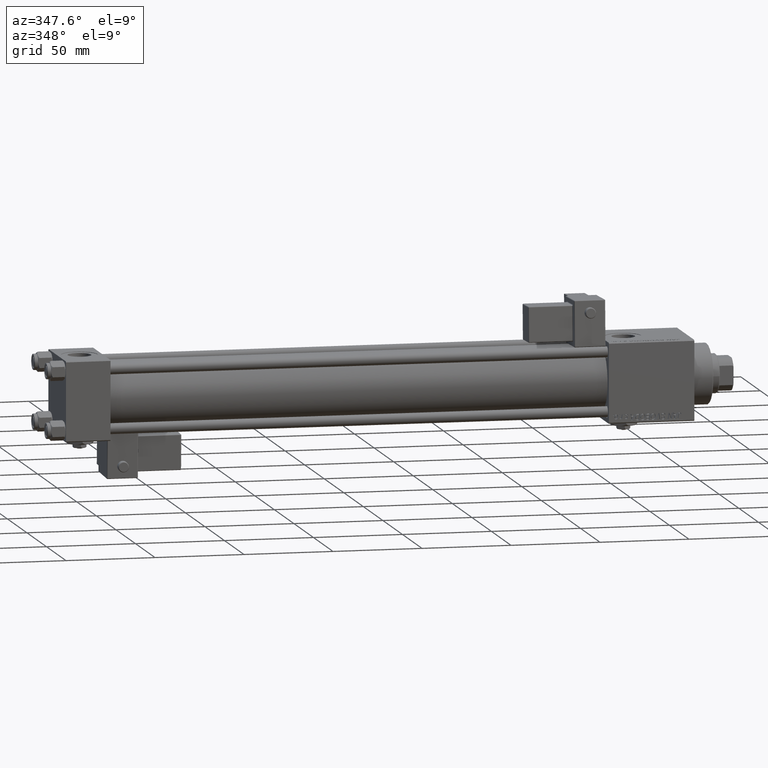
[diagram: clean part render]
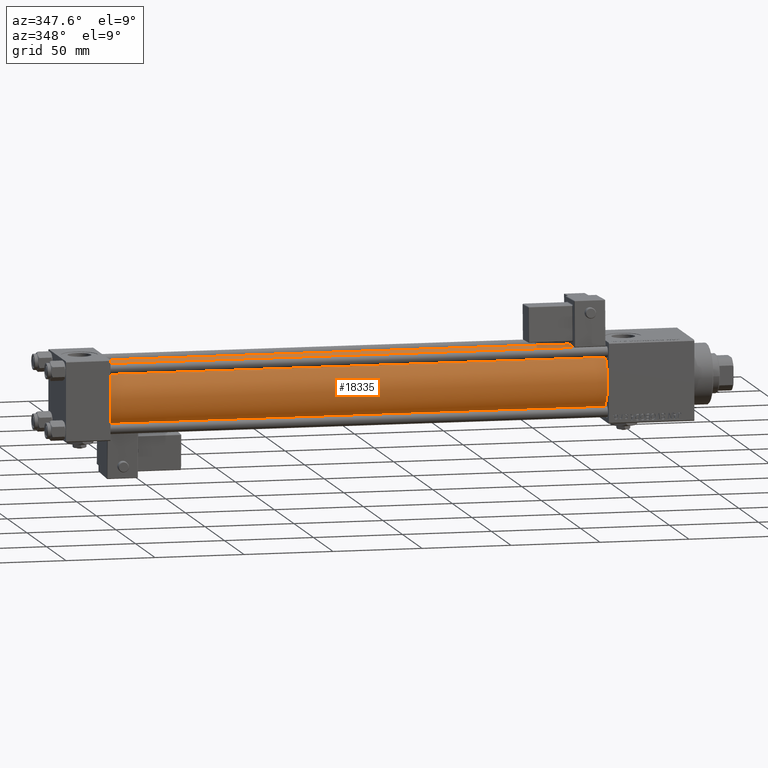
[diagram: same view with one face highlighted and labeled with its STEP entity id]
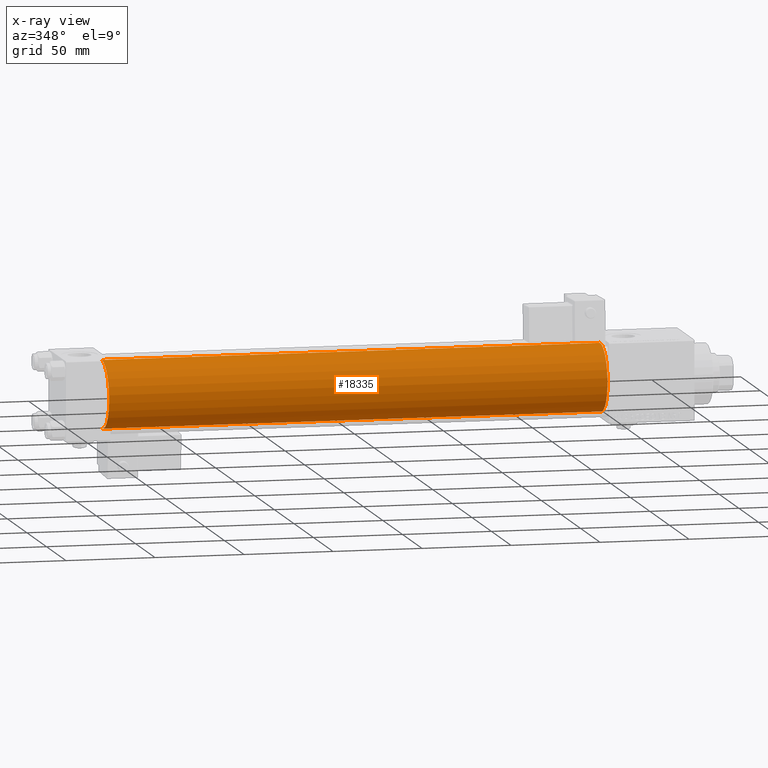
[diagram: x-ray of the same camera — body ghosted, the highlighted face saturated]
A machine part, auxiliary view. The second image highlights one B-rep face of the part: STEP entity #18335.
The next image is the same camera in x-ray: the body ghosted, the highlighted face saturated — about 0% of this face is hidden behind the body in this view.
In plain terms, the highlighted cylindrical surface (edge-blend (fillet) strip) has radius 19 mm, axis along (-1, -0, -0).
Its self-contained STEP definition (entity closure, byte-faithful):
#523 = CARTESIAN_POINT ( 'NONE',  ( 305.0000000000000568, -2.602085213965210642E-15, 19.00000000000000000 ) ) ;
#1055 = VECTOR ( 'NONE', #15272, 1000.000000000000000 ) ;
#4654 = EDGE_CURVE ( 'NONE', #42153, #38949, #31903, .T. ) ;
#5104 = CARTESIAN_POINT ( 'NONE',  ( 25.00000000000002132, -2.602085213965210642E-15, 0.000000000000000000 ) ) ;
#6267 = DIRECTION ( 'NONE',  ( 0.000000000000000000, 0.000000000000000000, 1.000000000000000000 ) ) ;
#7269 = EDGE_CURVE ( 'NONE', #35324, #22172, #21953, .T. ) ;
#8792 = DIRECTION ( 'NONE',  ( 1.000000000000000000, 0.000000000000000000, 0.000000000000000000 ) ) ;
#10829 = CIRCLE ( 'NONE', #48672, 19.00000000000000000 ) ;
#14568 = ORIENTED_EDGE ( 'NONE', *, *, #4654, .F. ) ;
#14907 = ORIENTED_EDGE ( 'NONE', *, *, #30708, .T. ) ;
#15272 = DIRECTION ( 'NONE',  ( -1.000000000000000000, -0.000000000000000000, -0.000000000000000000 ) ) ;
#15581 = FACE_OUTER_BOUND ( 'NONE', #43951, .T. ) ;
#16105 = CIRCLE ( 'NONE', #44952, 19.00000000000000000 ) ;
#17391 = ORIENTED_EDGE ( 'NONE', *, *, #36066, .F. ) ;
#18286 = DIRECTION ( 'NONE',  ( -1.000000000000000000, -0.000000000000000000, -0.000000000000000000 ) ) ;
#18335 = ADVANCED_FACE ( 'NONE', ( #15581 ), #27432, .T. ) ;
#18944 = CARTESIAN_POINT ( 'NONE',  ( 305.0000000000000568, -2.752562955852396712E-16, -19.00000000000000000 ) ) ;
#19609 = CARTESIAN_POINT ( 'NONE',  ( 25.00000000000002132, -2.602085213965210642E-15, 19.00000000000000000 ) ) ;
#21784 = DIRECTION ( 'NONE',  ( 0.000000000000000000, 0.000000000000000000, -1.000000000000000000 ) ) ;
#21953 = LINE ( 'NONE', #48450, #38923 ) ;
#22172 = VERTEX_POINT ( 'NONE', #19609 ) ;
#25982 = DIRECTION ( 'NONE',  ( 0.000000000000000000, 0.000000000000000000, 1.000000000000000000 ) ) ;
#27432 = CYLINDRICAL_SURFACE ( 'NONE', #30944, 19.00000000000000000 ) ;
#30708 = EDGE_CURVE ( 'NONE', #22172, #38949, #16105, .T. ) ;
#30795 = CARTESIAN_POINT ( 'NONE',  ( 305.0000000000000568, -2.602085213965210642E-15, 0.000000000000000000 ) ) ;
#30944 = AXIS2_PLACEMENT_3D ( 'NONE', #49432, #45762, #6267 ) ;
#31903 = LINE ( 'NONE', #46004, #1055 ) ;
#34159 = DIRECTION ( 'NONE',  ( 1.000000000000000000, -0.000000000000000000, 0.000000000000000000 ) ) ;
#35324 = VERTEX_POINT ( 'NONE', #523 ) ;
#36066 = EDGE_CURVE ( 'NONE', #35324, #42153, #10829, .T. ) ;
#36702 = CARTESIAN_POINT ( 'NONE',  ( 25.00000000000002132, -2.752562955852396712E-16, -19.00000000000000000 ) ) ;
#38923 = VECTOR ( 'NONE', #18286, 1000.000000000000000 ) ;
#38949 = VERTEX_POINT ( 'NONE', #36702 ) ;
#42153 = VERTEX_POINT ( 'NONE', #18944 ) ;
#43951 = EDGE_LOOP ( 'NONE', ( #14568, #17391, #52064, #14907 ) ) ;
#44952 = AXIS2_PLACEMENT_3D ( 'NONE', #5104, #34159, #25982 ) ;
#45762 = DIRECTION ( 'NONE',  ( -1.000000000000000000, -0.000000000000000000, -0.000000000000000000 ) ) ;
#46004 = CARTESIAN_POINT ( 'NONE',  ( 305.0000000000000568, -2.752562955852396712E-16, -19.00000000000000000 ) ) ;
#48450 = CARTESIAN_POINT ( 'NONE',  ( 305.0000000000000568, -2.602085213965210642E-15, 19.00000000000000000 ) ) ;
#48672 = AXIS2_PLACEMENT_3D ( 'NONE', #30795, #8792, #21784 ) ;
#49432 = CARTESIAN_POINT ( 'NONE',  ( 305.0000000000000568, -2.602085213965210642E-15, 0.000000000000000000 ) ) ;
#52064 = ORIENTED_EDGE ( 'NONE', *, *, #7269, .T. ) ;